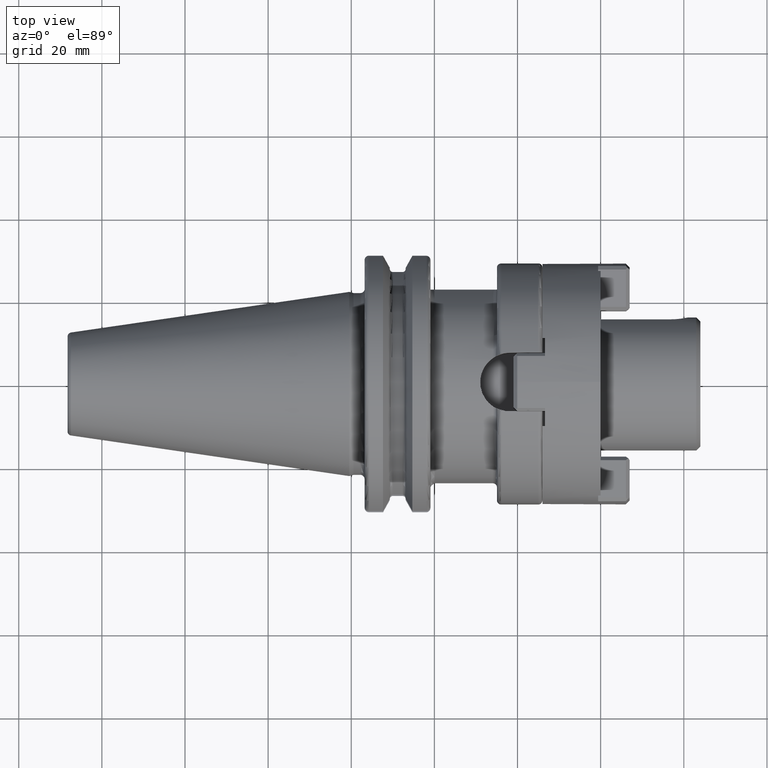
[diagram: clean part render]
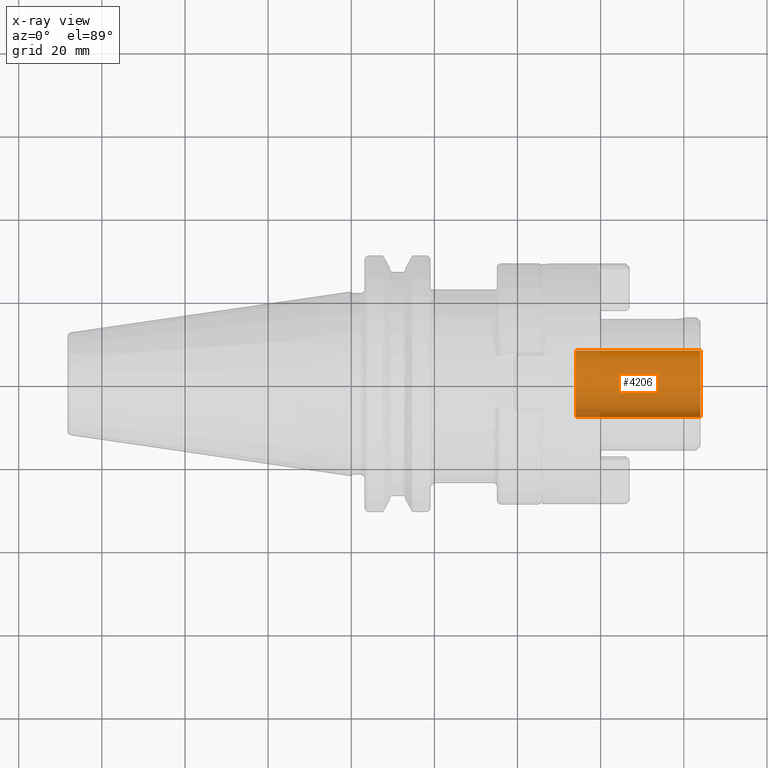
[diagram: x-ray — body ghosted, one internal face saturated and labeled with its STEP entity id]
A machine part, top view, then the same camera in x-ray: the body is ghosted and one INTERNAL B-rep face — a face not visible from any outside direction — is saturated and labeled: STEP entity #4206.
In plain terms, the highlighted cylindrical surface (edge-blend (fillet) strip) has radius 8 mm, axis along (1, 0, 0).
Its self-contained STEP definition (entity closure, byte-faithful):
#4141=CARTESIAN_POINT('',(8.4E1,0.E0,0.E0));
#4142=DIRECTION('',(-1.E0,0.E0,0.E0));
#4143=DIRECTION('',(0.E0,1.E0,0.E0));
#4144=AXIS2_PLACEMENT_3D('',#4141,#4142,#4143);
#4151=DIRECTION('',(-1.E0,0.E0,0.E0));
#4152=VECTOR('',#4151,3.E1);
#4153=CARTESIAN_POINT('',(8.4E1,8.E0,0.E0));
#4154=LINE('',#4153,#4152);
#4155=DIRECTION('',(-1.E0,0.E0,0.E0));
#4156=VECTOR('',#4155,3.E1);
#4157=CARTESIAN_POINT('',(8.4E1,-8.E0,0.E0));
#4158=LINE('',#4157,#4156);
#4159=CARTESIAN_POINT('',(5.4E1,0.E0,0.E0));
#4160=DIRECTION('',(1.E0,0.E0,0.E0));
#4161=DIRECTION('',(0.E0,-1.E0,0.E0));
#4162=AXIS2_PLACEMENT_3D('',#4159,#4160,#4161);
#4179=CARTESIAN_POINT('',(5.4E1,-8.E0,0.E0));
#4180=CARTESIAN_POINT('',(5.4E1,8.E0,0.E0));
#4181=VERTEX_POINT('',#4179);
#4182=VERTEX_POINT('',#4180);
#4183=CARTESIAN_POINT('',(8.4E1,-8.E0,0.E0));
#4184=CARTESIAN_POINT('',(8.4E1,8.E0,0.E0));
#4185=VERTEX_POINT('',#4183);
#4186=VERTEX_POINT('',#4184);
#4191=CARTESIAN_POINT('',(3.443367445015E1,0.E0,0.E0));
#4192=DIRECTION('',(1.E0,0.E0,0.E0));
#4193=DIRECTION('',(0.E0,-1.E0,0.E0));
#4194=AXIS2_PLACEMENT_3D('',#4191,#4192,#4193);
#4195=CYLINDRICAL_SURFACE('',#4194,8.E0);
#4197=ORIENTED_EDGE('',*,*,#4196,.T.);
#4199=ORIENTED_EDGE('',*,*,#4198,.T.);
#4201=ORIENTED_EDGE('',*,*,#4200,.T.);
#4203=ORIENTED_EDGE('',*,*,#4202,.F.);
#4204=EDGE_LOOP('',(#4197,#4199,#4201,#4203));
#4205=FACE_OUTER_BOUND('',#4204,.F.);
#4206=ADVANCED_FACE('',(#4205),#4195,.F.);
#4145=CIRCLE('',#4144,8.E0);
#4163=CIRCLE('',#4162,8.E0);
#4196=EDGE_CURVE('',#4186,#4185,#4145,.T.);
#4198=EDGE_CURVE('',#4185,#4181,#4158,.T.);
#4200=EDGE_CURVE('',#4181,#4182,#4163,.T.);
#4202=EDGE_CURVE('',#4186,#4182,#4154,.T.);